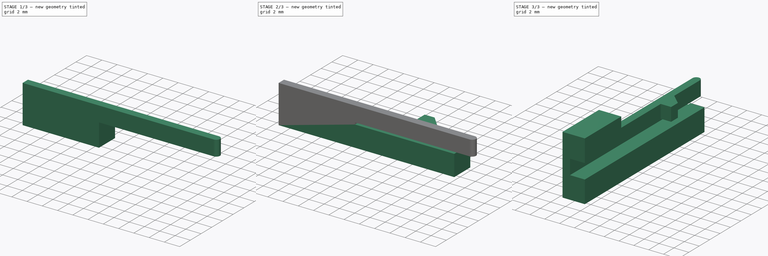
[diagram: build sequence overview — one tinted view per stage of 3, left to right]
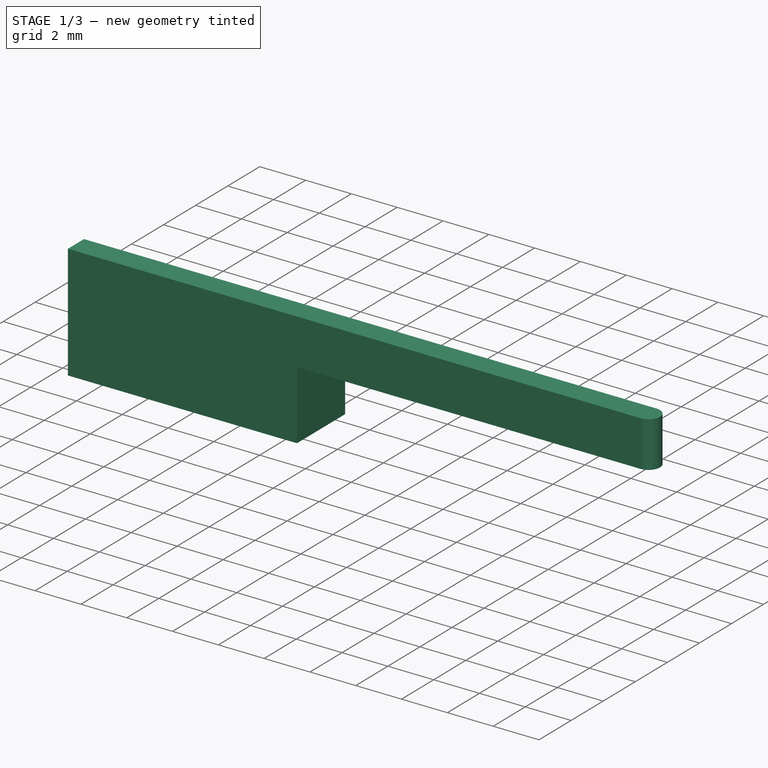
[diagram: stage 1 of 3 — iso view after this stage's code; geometry added in this stage tinted green]
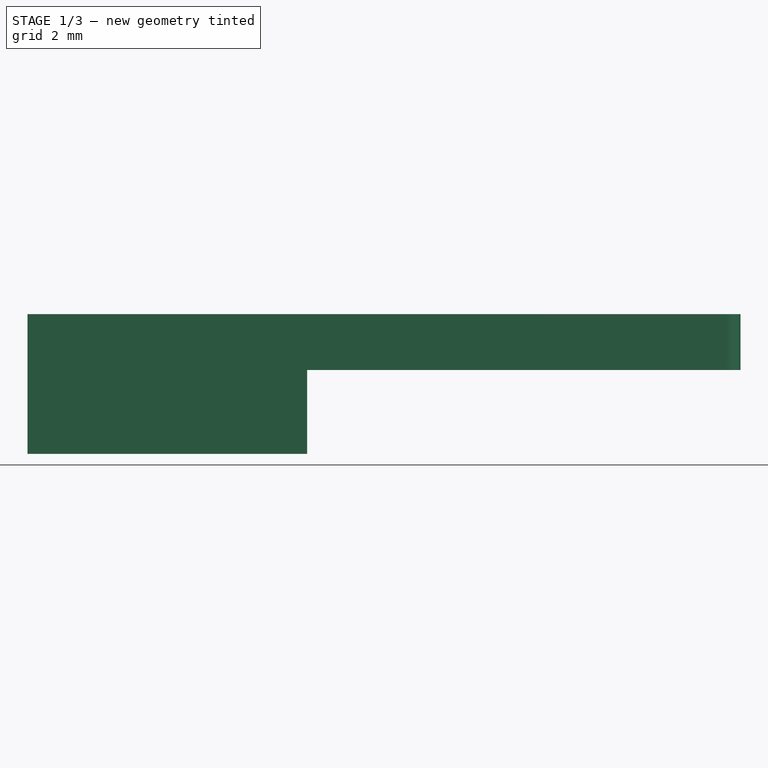
[diagram: stage 1 of 3 — front view after this stage's code; geometry added in this stage tinted green]
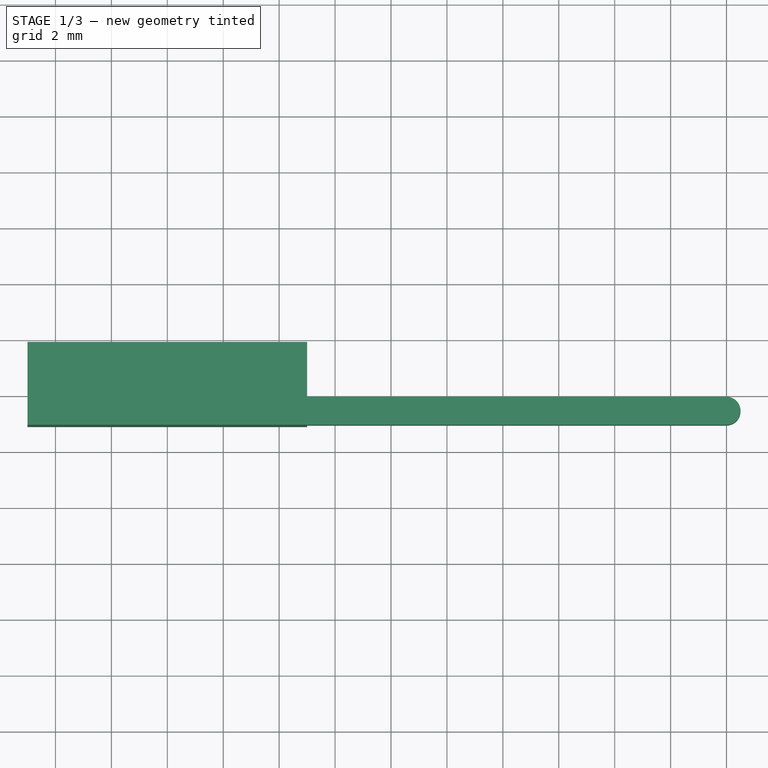
[diagram: stage 1 of 3 — top view after this stage's code; geometry added in this stage tinted green]
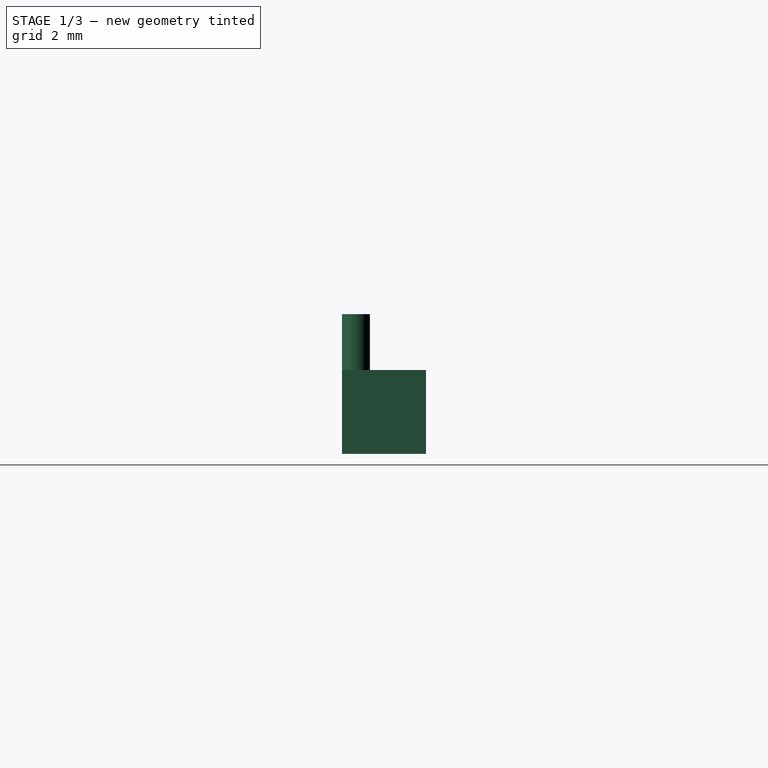
[diagram: stage 1 of 3 — right view after this stage's code; geometry added in this stage tinted green]
FCSTD DOCUMENT  (FreeCAD 2023.131R26244 +5365 (Git))
Label: Control_Latch_Design
License: All rights reserved
LicenseURL: http://en.wikipedia.org/wiki/All_rights_reserved
objects: Sketcher::SketchObject×4, App::Part×3, PartDesign::Pad×3, PartDesign::Plane×3, PartDesign::AdditiveBox×2, PartDesign::CoordinateSystem×1, Part::Feature×1, PartDesign::Body×1, Part::Mirroring×1
note: 30 computed .brp shape members not serialized (recipe doc carries the construction recipe); baked Part::Feature solids carry a one-line shape summary decoded from their .brp

FEATURE [PartDesign::CoordinateSystem] Local_CS_b383
  AttacherType = Attacher::AttachEngine3D
  AttachmentSupport = -> [X_Axis]
  FixShape = 1
  InvalidShape = false
  MapMode = 2
  Support = -> [X_Axis]
  TreeRank = 40
  ValidateShape = false
FEATURE [Part::Feature] Pcb_b383
  FixShape = 1
  InvalidShape = false
  Placement = pos=(-65,-69,0) rot=(0,0,1;1.5708rad)
  TreeRank = 41
  ValidateShape = false
  shape: bbox 22 x 23.3 x 1.6 mm, 41 faces (baked)
FEATURE [Sketcher::SketchObject] PCB_Sketch_b383
  ArcFitTolerance = 1e-06
  ExternalBSplineMaxDegree = 5
  ExternalBSplineTolerance = 0.0001
  FixShape = 1
  FullyConstrained = false
  InternalTolerance = 1e-06
  InvalidShape = false
  MakeInternals = false
  TreeRank = 34
  ValidateShape = false
  sketch-geometry (12):
    g0: LineSegment StartX=19.3 StartY=22 StartZ=0 EndX=17.8 EndY=20.5 EndZ=0
    g1: LineSegment StartX=0 StartY=22 StartZ=0 EndX=16.3 EndY=22 EndZ=0
    g2: LineSegment StartX=23.3 StartY=0 StartZ=0 EndX=19.3 EndY=0 EndZ=0
    g3: LineSegment StartX=16.3 StartY=0 StartZ=0 EndX=16.3 EndY=1.5 EndZ=0
    g4: LineSegment StartX=17.8 StartY=1.5 StartZ=0 EndX=19.3 EndY=0 EndZ=0
    g5: LineSegment StartX=16.3 StartY=1.5 StartZ=0 EndX=17.8 EndY=1.5 EndZ=0
    g6: LineSegment StartX=23.3 StartY=22 StartZ=0 EndX=23.3 EndY=0 EndZ=0
    g7: LineSegment StartX=19.3 StartY=22 StartZ=0 EndX=23.3 EndY=22 EndZ=0
    g8: LineSegment StartX=16.3 StartY=20.5 StartZ=0 EndX=17.8 EndY=20.5 EndZ=0
    g9: LineSegment StartX=0 StartY=22 StartZ=0 EndX=0 EndY=0 EndZ=0
    g10: LineSegment StartX=16.3 StartY=22 StartZ=0 EndX=16.3 EndY=20.5 EndZ=0
    g11: LineSegment StartX=0 StartY=0 StartZ=0 EndX=16.3 EndY=0 EndZ=0
  constraints (12):
    c: Coincident(g11,g9)
    c: Coincident(g1,g9)
    c: Coincident(g11,g3)
    c: Coincident(g3,g5)
    c: Coincident(g10,g8)
    c: Coincident(g1,g10)
    c: Coincident(g4,g5)
    c: Coincident(g0,g8)
    c: Coincident(g4,g2)
    c: Coincident(g7,g0)
    c: Coincident(g6,g2)
    c: Coincident(g7,g6)
FEATURE [App::Part] Board_Geoms_b383
  ClaimAllChildren = false
  ExportMode = 1
  Group = -> [Pcb_b383,PCB_Sketch_b383]
  Origin = -> Origin
  TreeRank = 43
  _ExportChildren = -> [Pcb_b383,PCB_Sketch_b383]
  _GroupVersion = 1
FEATURE [App::Part] Step_Models_b383
  ClaimAllChildren = false
  ExportMode = 1
  Origin = -> Origin002
  TreeRank = 36
  _GroupVersion = 1
FEATURE [App::Part] Board_b383  label="SolderPlate_Control"
  ClaimAllChildren = false
  ExportMode = 1
  Group = -> [Local_CS_b383,Board_Geoms_b383,Step_Models_b383]
  Origin = -> Origin001
  TreeRank = 45
  _ExportChildren = -> [Local_CS_b383,Board_Geoms_b383,Step_Models_b383]
  _GroupVersion = 1
FEATURE [Sketcher::SketchObject] Sketch
  ArcFitTolerance = 1e-06
  AttachmentOffset = pos=(0,-0.1,0.2) rot=(0,0,1;0rad)
  AttachmentSupport = -> [XY_Plane001]
  ExternalBSplineMaxDegree = 5
  ExternalBSplineTolerance = 0.0001
  FixShape = 1
  FullyConstrained = true
  InternalTolerance = 1e-06
  InvalidShape = false
  MakeInternals = false
  MapMode = 5
  Placement = pos=(0,-0.1,0.2) rot=(0,0,1;0rad)
  Support = -> [XY_Plane001]
  TreeRank = 58
  ValidateShape = false
  sketch-geometry (4):
    g0: LineSegment StartX=24 StartY=-1 StartZ=0 EndX=-1 EndY=-1 EndZ=0
    g1: LineSegment StartX=-1 StartY=-1 StartZ=0 EndX=-1 EndY=0 EndZ=0
    g2: ArcOfCircle CenterX=24 CenterY=-0.5 CenterZ=0 NormalX=0 NormalY=0 NormalZ=1 AngleXU=0 Radius=0.5 StartAngle=4.71239 EndAngle=7.85398
    g3: LineSegment StartX=24 StartY=0 StartZ=0 EndX=-1 EndY=0 EndZ=0
  constraints (12):
    c: PointOnObject(g2,g-1)
    c: Horizontal(g0)
    c: Coincident(g0,g1)
    c: DistanceY(g0,g2) = 1
    c: Coincident(g0,g2)
    c: Symmetric(g0,g2,g2)
    c: Vertical(g0,g2)
    c: Vertical(g1)
    c: DistanceX(g-1,g0) = 24
    c: DistanceX(g1,g-1) = 1
    c: Tangent(g2,g3) = -1.5708
    c: Coincident(g3,g1)
FEATURE [PartDesign::Pad] Pad
  AddSubType = 0
  AlongSketchNormal = false
  AutoTaperInnerAngle = true
  CheckUpToFaceLimits = true
  ClaimChildren = false
  Direction = (0,0,1)
  Fit = 0
  FitJoin = 0
  FixShape = 1
  InnerFit = 0
  InnerFitJoin = 0
  InvalidShape = false
  Length = 2
  Length2 = 100
  Linearize = true
  NewSolid = false
  Profile = -> Sketch
  Refine = true
  Reversed = true
  Suppress = false
  TaperInnerAngle = 0
  TaperInnerAngleRev = 0
  TreeRank = 59
  Type = 0
  ValidateShape = false
  _ProfileBasedVersion = 1
FEATURE [PartDesign::Plane] DatumPlane  label="LatchBottomPlane"
  AttachmentSupport = -> [Pad]
  FixShape = 1
  InvalidShape = false
  Length = 10
  MapMode = 5
  MinimumLength = 10
  MinimumWidth = 10
  Placement = pos=(0,0,-1.8) rot=(1,0,0;3.14159rad)
  ResizeMode = 0
  Support = -> [Pad]
  TreeRank = 60
  ValidateShape = false
  Width = 10
FEATURE [PartDesign::AdditiveBox] Box  label="Support"
  AddSubType = 0
  AttacherType = Attacher::AttachEngine3D
  AttachmentOffset = pos=(-1,-1.9,0) rot=(0,0,1;0rad)
  AttachmentSupport = -> [DatumPlane]
  BaseFeature = -> Pad
  FixShape = 1
  Height = 3
  InvalidShape = false
  Length = 10
  MapMode = 5
  NewSolid = false
  Placement = pos=(-1,1.9,-1.8) rot=(1,0,0;3.14159rad)
  Refine = true
  Support = -> [DatumPlane]
  Suppress = false
  TreeRank = 61
  ValidateShape = false
  Width = 3
  expr: AttachmentOffset.Base.y = -Width + 1.1mm
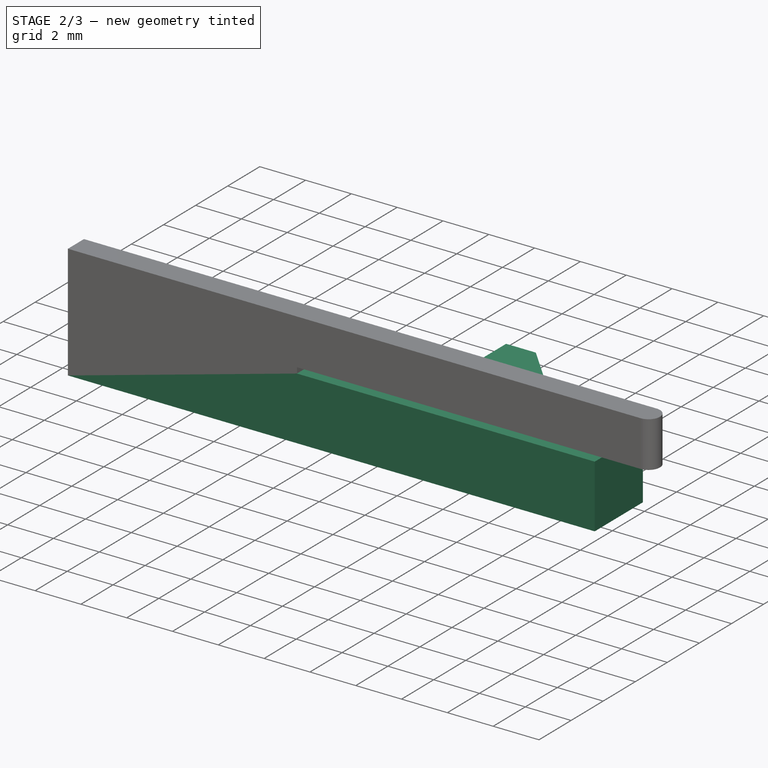
[diagram: stage 2 of 3 — iso view after this stage's code; geometry added in this stage tinted green]
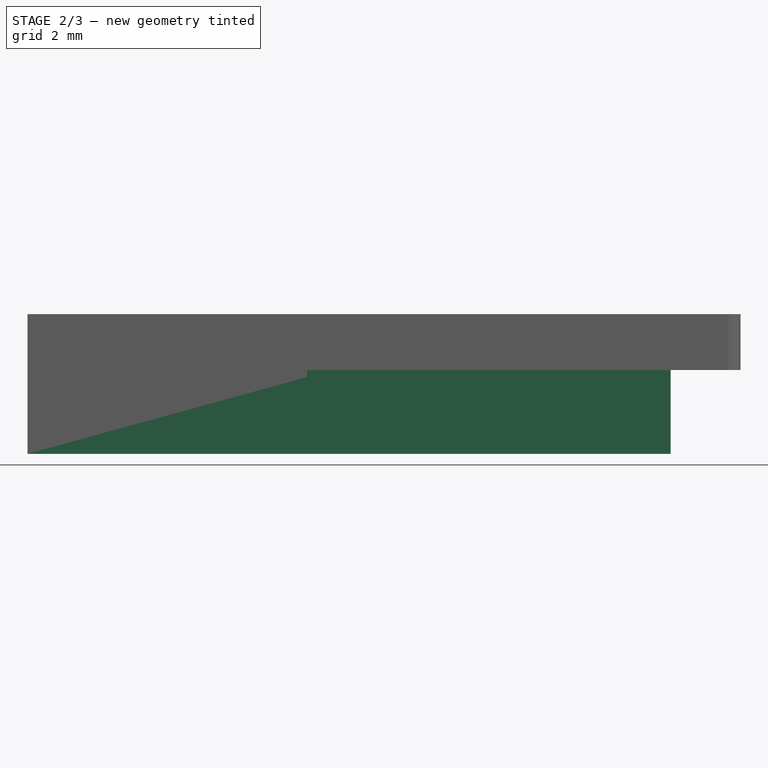
[diagram: stage 2 of 3 — front view after this stage's code; geometry added in this stage tinted green]
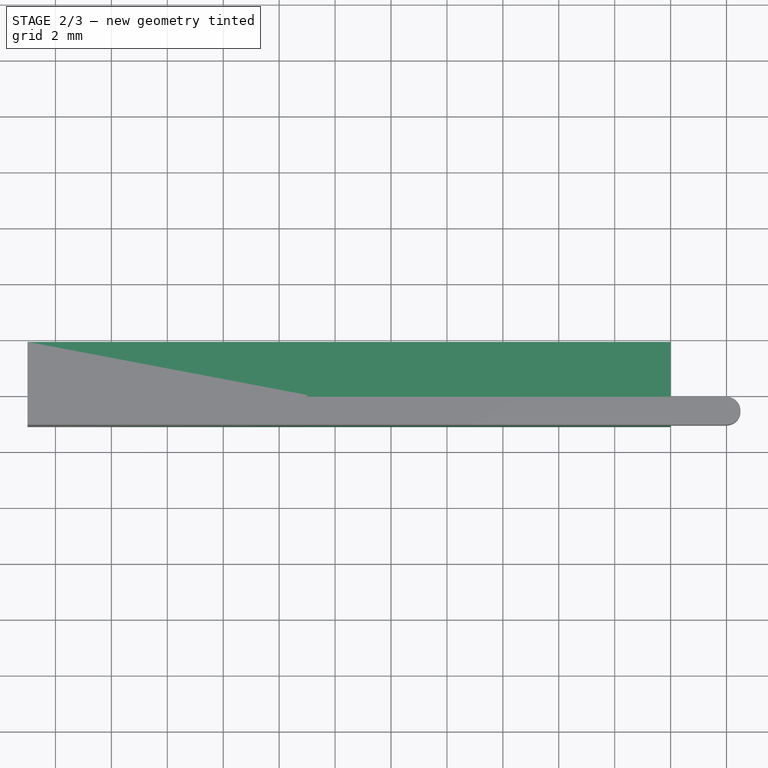
[diagram: stage 2 of 3 — top view after this stage's code; geometry added in this stage tinted green]
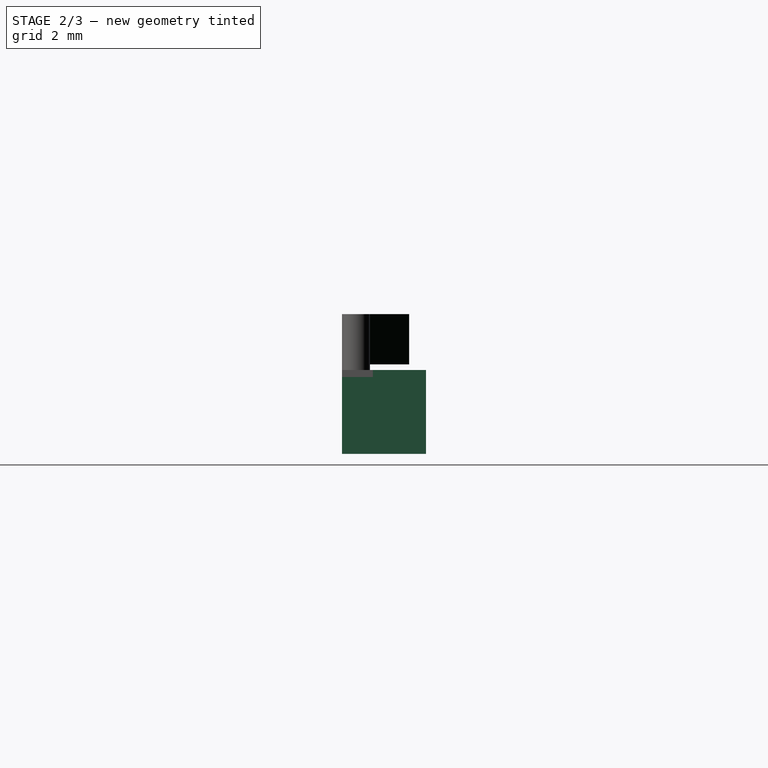
[diagram: stage 2 of 3 — right view after this stage's code; geometry added in this stage tinted green]
FEATURE [PartDesign::Plane] DatumPlane001
  AttachmentSupport = -> [Box]
  FixShape = 1
  InvalidShape = false
  Length = 10
  MapMode = 6
  MinimumLength = 10
  MinimumWidth = 10
  Placement = pos=(9,-1.1,-4.8) rot=(0.707107,0,0.707107;3.14159rad)
  ResizeMode = 0
  Support = -> [Box]
  TreeRank = 62
  ValidateShape = false
  Width = 10
FEATURE [Sketcher::SketchObject] Sketch001
  ArcFitTolerance = 1e-06
  AttachmentSupport = -> [DatumPlane001]
  ExternalBSplineMaxDegree = 5
  ExternalBSplineTolerance = 0.0001
  FixShape = 1
  FullyConstrained = true
  InternalTolerance = 1e-06
  InvalidShape = false
  MakeInternals = false
  MapMode = 5
  Placement = pos=(9,-1.1,-4.8) rot=(0.707107,0,0.707107;3.14159rad)
  Support = -> [DatumPlane001]
  TreeRank = 63
  ValidateShape = false
  expr: Constraints[13] = <<Support>>.Width
  expr: Constraints[14] = <<Support>>.Height
  sketch-geometry (6):
    g0: LineSegment StartX=0 StartY=0 StartZ=0 EndX=0 EndY=-3 EndZ=0
    g1: LineSegment StartX=0 StartY=-3 StartZ=0 EndX=3 EndY=-3 EndZ=0
    g2: LineSegment StartX=3 StartY=-3 StartZ=0 EndX=3 EndY=-1.1 EndZ=0
    g3: LineSegment StartX=3 StartY=-1.1 StartZ=0 EndX=2.75 EndY=-1.1 EndZ=0
    g4: LineSegment StartX=2.75 StartY=-1.1 StartZ=0 EndX=2.75 EndY=0 EndZ=0
    g5: LineSegment StartX=2.75 StartY=0 StartZ=0 EndX=0 EndY=0 EndZ=0
  constraints (17):
    c: Coincident(g-1,g0)
    c: Vertical(g0)
    c: Coincident(g0,g1)
    c: Horizontal(g1)
    c: Coincident(g1,g2)
    c: Vertical(g2)
    c: Coincident(g2,g3)
    c: Horizontal(g3)
    c: Coincident(g3,g4)
    c: PointOnObject(g4,g-1)
    c: Vertical(g4)
    c: Coincident(g4,g5)
    c: Coincident(g5,g0)
    c: DistanceY(g0,g0) = 3
    c: DistanceX(g1,g1) = 3
    c: DistanceY(g4,g4) = 1.1
    c: DistanceX(g3,g3) = 0.25
FEATURE [PartDesign::Pad] Pad001
  AddSubType = 0
  AlongSketchNormal = false
  AutoTaperInnerAngle = true
  BaseFeature = -> Box
  CheckUpToFaceLimits = true
  ClaimChildren = false
  Direction = (1,0,-2e-16)
  Fit = 0
  FitJoin = 0
  FixShape = 1
  InnerFit = 0
  InnerFitJoin = 0
  InvalidShape = false
  Length = 13
  Length2 = 100
  Linearize = true
  NewSolid = false
  Profile = -> Sketch001
  Refine = true
  Suppress = false
  TaperInnerAngle = 0
  TaperInnerAngleRev = 0
  TreeRank = 64
  Type = 0
  ValidateShape = false
  _ProfileBasedVersion = 1
FEATURE [PartDesign::Plane] DatumPlane002
  AttachmentSupport = -> [Pad001]
  FixShape = 1
  InvalidShape = false
  Length = 25.4964
  MapMode = 5
  MinimumLength = 10
  MinimumWidth = 10
  Placement = pos=(0,0,0.2) rot=(0,0,1;0rad)
  ResizeMode = 0
  Support = -> [Pad001]
  TreeRank = 65
  ValidateShape = false
  Width = 10
FEATURE [Sketcher::SketchObject] Sketch002
  ArcFitTolerance = 1e-06
  AttachmentSupport = -> [DatumPlane002]
  ExternalBSplineMaxDegree = 5
  ExternalBSplineTolerance = 0.0001
  FixShape = 1
  FullyConstrained = true
  InternalTolerance = 1e-06
  InvalidShape = false
  MakeInternals = false
  MapMode = 5
  Placement = pos=(0,0,0.2) rot=(0,0,1;0rad)
  Support = -> [DatumPlane002]
  TreeRank = 66
  ValidateShape = false
  sketch-geometry (4):
    g0: LineSegment StartX=16.45 StartY=-0.1 StartZ=0 EndX=16.45 EndY=1.3 EndZ=0
    g1: LineSegment StartX=16.45 StartY=1.3 StartZ=0 EndX=17.75 EndY=1.3 EndZ=0
    g2: LineSegment StartX=17.75 StartY=1.3 StartZ=0 EndX=19.05 EndY=-0.1 EndZ=0
    g3: LineSegment StartX=19.05 StartY=-0.1 StartZ=0 EndX=16.45 EndY=-0.1 EndZ=0
  constraints (12):
    c: Vertical(g0)
    c: Coincident(g0,g1)
    c: Horizontal(g1)
    c: Coincident(g1,g2)
    c: Coincident(g2,g3)
    c: Coincident(g3,g0)
    c: Horizontal(g3)
    c: DistanceY(g0,g-1) = 0.1
    c: DistanceX(g-1,g0) = 16.45
    c: DistanceX(g3,g3) = 2.6
    c: DistanceX(g1,g1) = 1.3
    c: DistanceY(g0,g0) = 1.4
FEATURE [PartDesign::Pad] Pad002
  AddSubType = 0
  AlongSketchNormal = false
  AutoTaperInnerAngle = true
  BaseFeature = -> Pad001
  CheckUpToFaceLimits = true
  ClaimChildren = false
  Direction = (0,-1e-16,1)
  Fit = 0
  FitJoin = 0
  FixShape = 1
  InnerFit = 0
  InnerFitJoin = 0
  InvalidShape = false
  Length = 1.8
  Length2 = 100
  Linearize = true
  NewSolid = false
  Profile = -> Sketch002
  Refine = true
  Reversed = true
  Suppress = false
  TaperInnerAngle = 0
  TaperInnerAngleRev = 0
  TreeRank = 67
  Type = 0
  ValidateShape = false
  _ProfileBasedVersion = 1
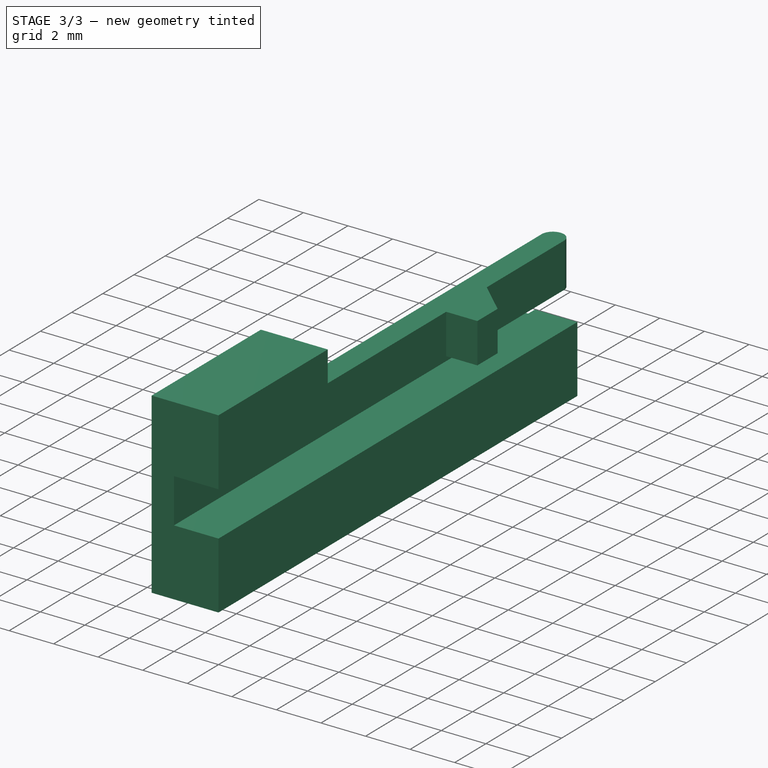
[diagram: stage 3 of 3 — iso view after this stage's code; geometry added in this stage tinted green]
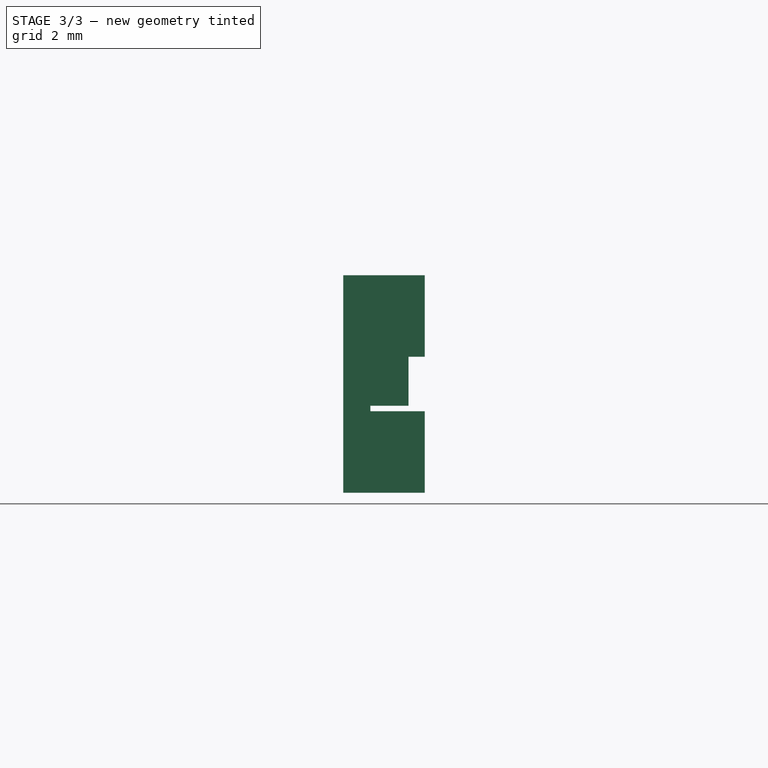
[diagram: stage 3 of 3 — front view after this stage's code; geometry added in this stage tinted green]
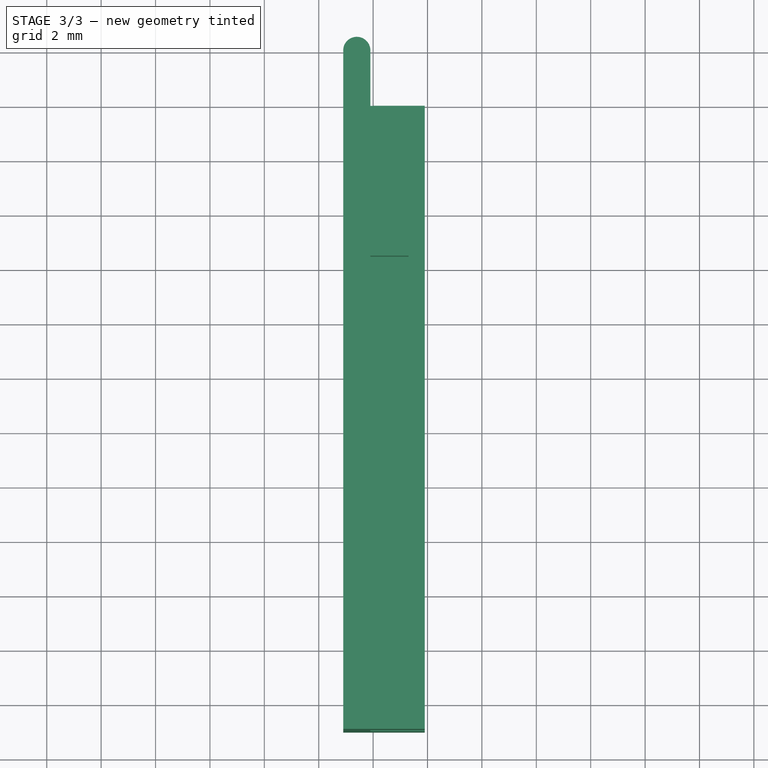
[diagram: stage 3 of 3 — top view after this stage's code; geometry added in this stage tinted green]
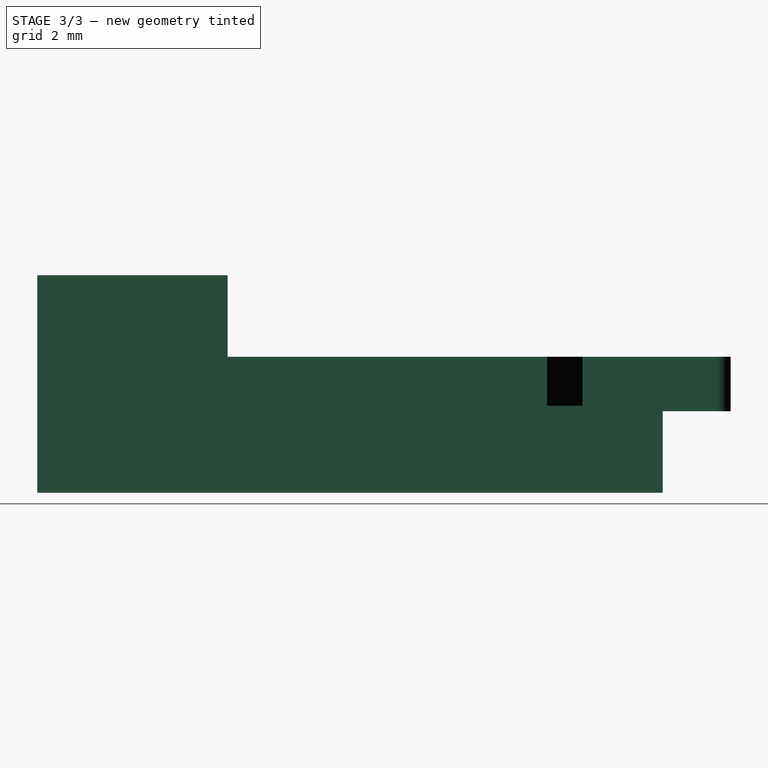
[diagram: stage 3 of 3 — right view after this stage's code; geometry added in this stage tinted green]
FEATURE [PartDesign::AdditiveBox] Box001
  AddSubType = 0
  AttacherType = Attacher::AttachEngine3D
  AttachmentOffset = pos=(-1,-1.1,0) rot=(0,0,1;0rad)
  AttachmentSupport = -> [DatumPlane002]
  BaseFeature = -> Pad002
  FixShape = 1
  Height = 3
  InvalidShape = false
  Length = 7
  MapMode = 5
  NewSolid = false
  Placement = pos=(-1,-1.1,0.2) rot=(0,0,1;0rad)
  Refine = true
  Support = -> [DatumPlane002]
  Suppress = false
  TreeRank = 68
  ValidateShape = false
  Width = 3
FEATURE [PartDesign::Body] Body
  AutoGroupSolids = false
  ClaimAllChildren = false
  ExportMode = 0
  FixShape = 1
  Group = -> [Sketch,Pad,DatumPlane,Box,DatumPlane001,Sketch001,Pad001,DatumPlane002,Sketch002,Pad002,Box001]
  InvalidShape = false
  Origin = -> Origin003
  Placement = pos=(0,0,0) rot=(0,0,1;1.5708rad)
  Tip = -> Box001
  TreeRank = 69
  ValidateShape = false
  _ExportChildren = -> [Pad,DatumPlane,Box,DatumPlane001,Pad001,DatumPlane002,Pad002,Box001]
  _GroupVersion = 1
FEATURE [Part::Mirroring] mirror  label="Body (mirrored) "
  Base = (-11,23.3,0)
  FixShape = 1
  InvalidShape = false
  Normal = (-1,0,0)
  Source = -> Body
  TreeRank = 70
  ValidateShape = false
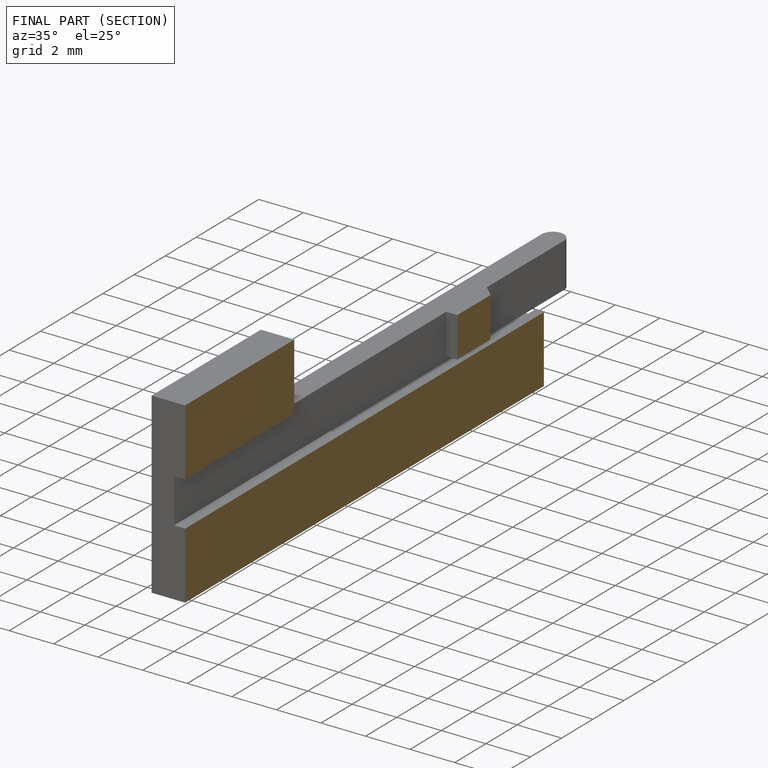
[diagram: finished part — half-section view (interior)]
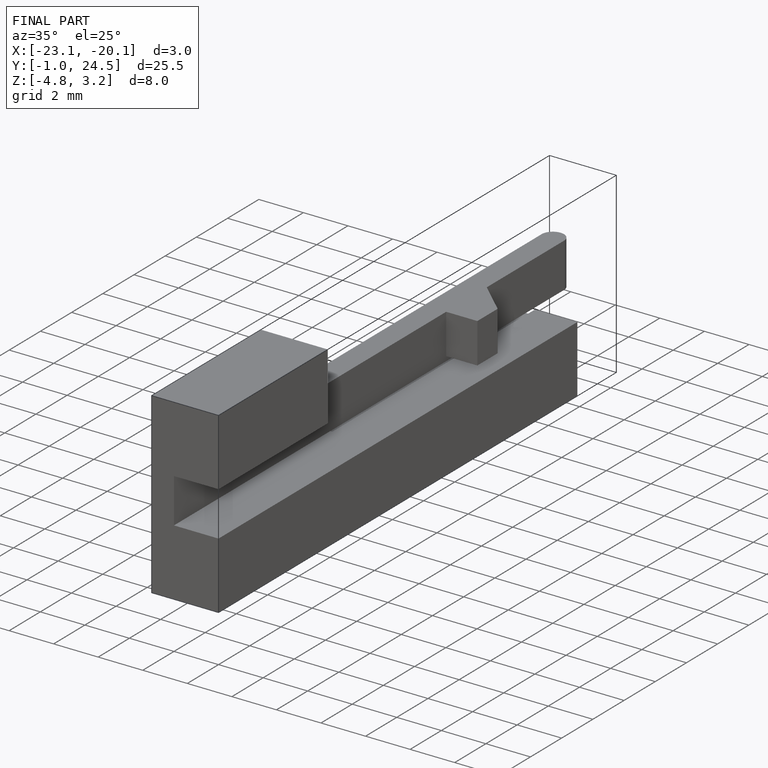
[diagram: finished part — iso view with bounding-box wireframe]
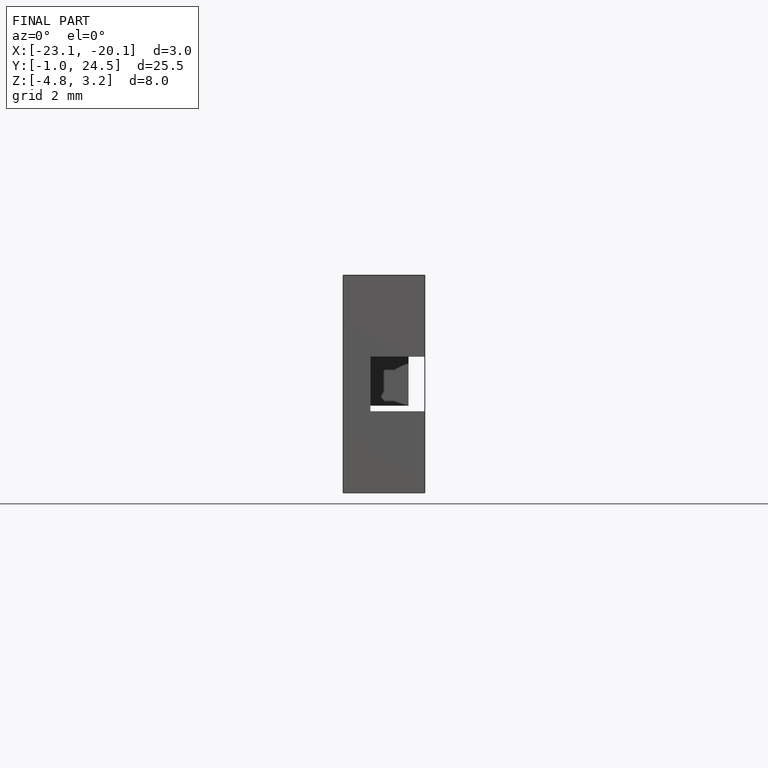
[diagram: finished part — front view with bounding-box wireframe]
